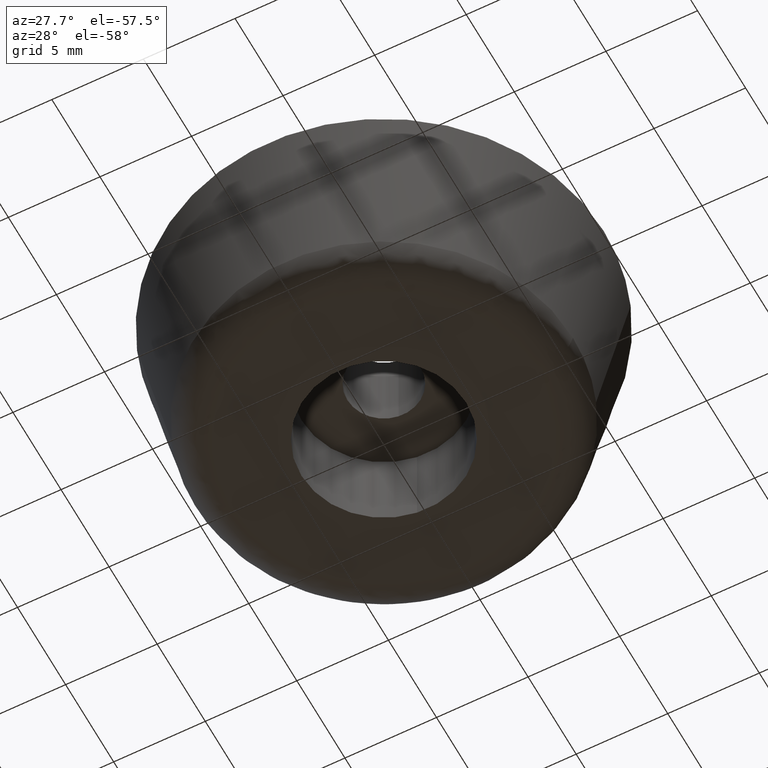
[diagram: clean part render]
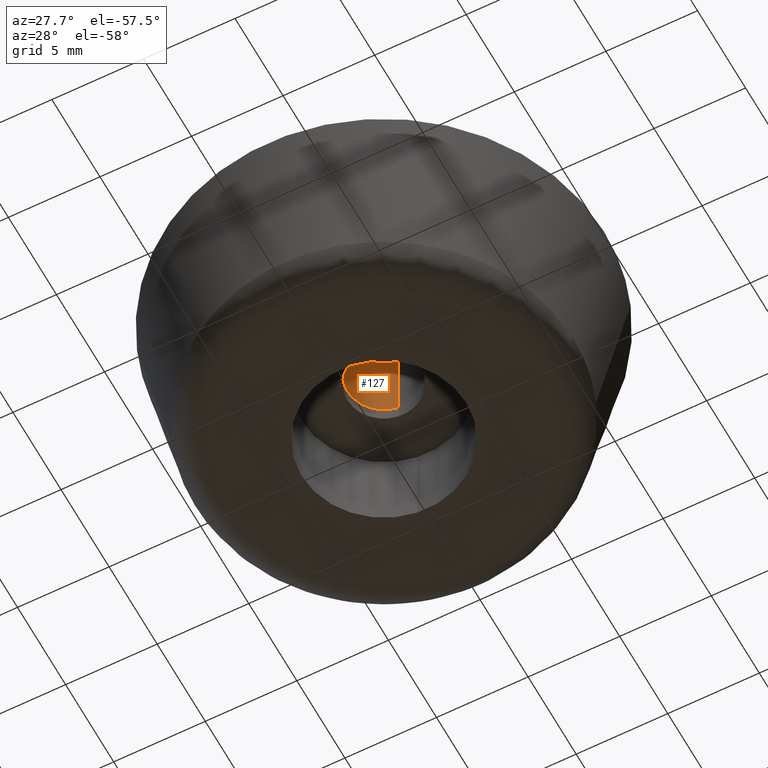
[diagram: same view with one face highlighted and labeled with its STEP entity id]
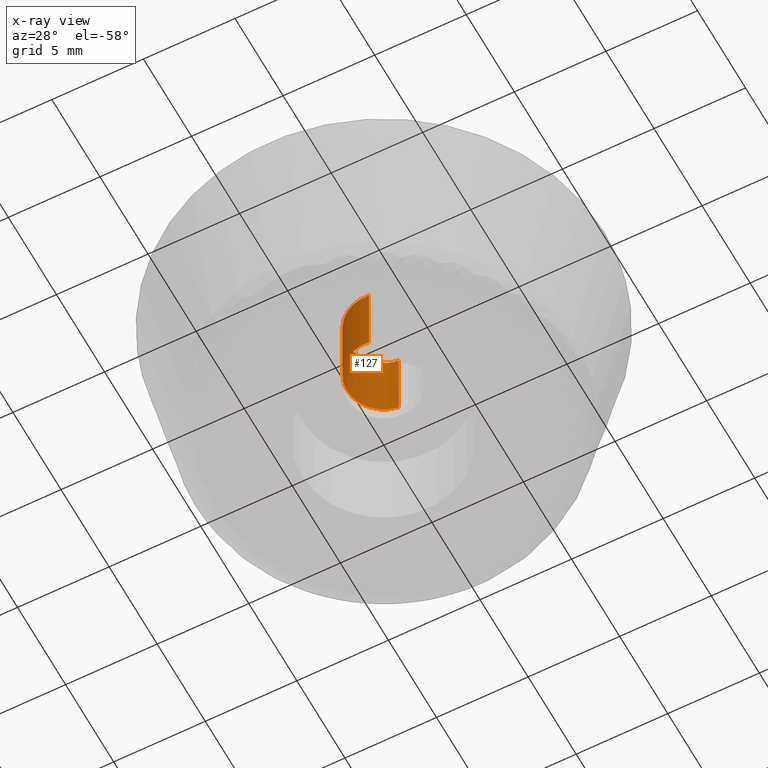
[diagram: x-ray of the same camera — body ghosted, the highlighted face saturated]
A machine part, auxiliary view. The second image highlights one B-rep face of the part: STEP entity #127.
The next image is the same camera in x-ray: the body ghosted, the highlighted face saturated — about 39% of this face is hidden behind the body in this view.
In plain terms, the highlighted cylindrical surface (partial cylindrical patch) has radius 2 mm, axis along (0, 0, 1).
Its self-contained STEP definition (entity closure, byte-faithful):
#127=ADVANCED_FACE('',(#289),#288,.F.);
#288=CYLINDRICAL_SURFACE('',#476,2.00000000000E+000);
#289=FACE_OUTER_BOUND('',#477,.T.);
#473=CARTESIAN_POINT('',(6.10924083871E-014,6.28629487979E-015,1.01050000000E+001));
#474=DIRECTION('',(2.76929706381E-014,2.84451388411E-015,1.00000000000E+000));
#475=DIRECTION('',(1.18034234657E-001,-9.93009526364E-001,-4.44089209851E-016));
#476=AXIS2_PLACEMENT_3D('',#473,#474,#475);
#477=EDGE_LOOP('',(#582,#583,#584,#585,#586,#587));
#582=ORIENTED_EDGE('',*,*,#640,.F.);
#583=ORIENTED_EDGE('',*,*,#642,.F.);
#584=ORIENTED_EDGE('',*,*,#657,.F.);
#585=ORIENTED_EDGE('',*,*,#646,.T.);
#586=ORIENTED_EDGE('',*,*,#648,.T.);
#587=ORIENTED_EDGE('',*,*,#658,.T.);
#640=EDGE_CURVE('',#883,#884,#885,.T.);
#642=EDGE_CURVE('',#891,#883,#898,.T.);
#646=EDGE_CURVE('',#925,#926,#927,.T.);
#648=EDGE_CURVE('',#926,#933,#940,.T.);
#657=EDGE_CURVE('',#925,#891,#998,.T.);
#658=EDGE_CURVE('',#933,#884,#1004,.T.);
#883=VERTEX_POINT('',#1182);
#884=VERTEX_POINT('',#1183);
#885=CIRCLE('',#1187,2.00000000000E+000);
#891=VERTEX_POINT('',#1188);
#898=CIRCLE('',#1196,2.00000000000E+000);
#925=VERTEX_POINT('',#1212);
#926=VERTEX_POINT('',#1213);
#927=CIRCLE('',#1217,2.00000000000E+000);
#933=VERTEX_POINT('',#1218);
#940=CIRCLE('',#1226,2.00000000000E+000);
#998=(BOUNDED_CURVE() B_SPLINE_CURVE(1,(#1259,#1260),.UNSPECIFIED.,.F.,.F.) B_SPLINE_CURVE_WITH_KNOTS((2,2),(8.33333313467E-002,9.16666670832E-001),.UNSPECIFIED.) CURVE() GEOMETRIC_REPRESENTATION_ITEM() RATIONAL_B_SPLINE_CURVE((1.00000000000E+000,1.00000000000E+000)) REPRESENTATION_ITEM('') );
#1004=(BOUNDED_CURVE() B_SPLINE_CURVE(1,(#1261,#1262),.UNSPECIFIED.,.F.,.F.) B_SPLINE_CURVE_WITH_KNOTS((2,2),(8.33333333333E-002,9.16666666667E-001),.UNSPECIFIED.) CURVE() GEOMETRIC_REPRESENTATION_ITEM() RATIONAL_B_SPLINE_CURVE((7.50000000000E-001,7.50000000000E-001)) REPRESENTATION_ITEM('') );
#1182=CARTESIAN_POINT('',(-2.00000000000E+000,-6.66133814775E-016,1.00000000000E+001));
#1183=CARTESIAN_POINT('',(-2.36411791321E-001,1.98597821361E+000,1.00000000000E+001));
#1184=CARTESIAN_POINT('',(-5.55111512313E-016,-3.33066907388E-016,1.00000000000E+001));
#1185=DIRECTION('',(1.01880182416E-014,-5.77861428570E-016,-1.00000000000E+000));
#1186=DIRECTION('',(-1.00000000000E+000,1.94289029309E-016,-1.01880182416E-014));
#1187=AXIS2_PLACEMENT_3D('',#1184,#1185,#1186);
#1188=CARTESIAN_POINT('',(2.36067743038E-001,-1.98601913906E+000,1.00000000000E+001));
#1193=CARTESIAN_POINT('',(-5.55111512313E-016,-3.33066907388E-016,1.00000000000E+001));
#1194=DIRECTION('',(1.01880182416E-014,-5.77861428570E-016,-1.00000000000E+000));
#1195=DIRECTION('',(-1.00000000000E+000,1.94289029309E-016,-1.01880182416E-014));
#1196=AXIS2_PLACEMENT_3D('',#1193,#1194,#1195);
#1212=CARTESIAN_POINT('',(2.36067743038E-001,-1.98601913906E+000,5.80000000000E+000));
#1213=CARTESIAN_POINT('',(-2.00000000000E+000,-1.52655665886E-015,5.80000000000E+000));
#1214=CARTESIAN_POINT('',(7.77156117238E-016,3.33066907388E-016,5.80000000000E+000));
#1215=DIRECTION('',(1.50938206526E-015,-2.05666435028E-015,-1.00000000000E+000));
#1216=DIRECTION('',(-1.00000000000E+000,-5.82867087928E-016,-1.50938206526E-015));
#1217=AXIS2_PLACEMENT_3D('',#1214,#1215,#1216);
#1218=CARTESIAN_POINT('',(-2.36411791321E-001,1.98597821361E+000,5.80000000000E+000));
#1223=CARTESIAN_POINT('',(7.77156117238E-016,3.33066907388E-016,5.80000000000E+000));
#1224=DIRECTION('',(1.50938206526E-015,-2.05666435028E-015,-1.00000000000E+000));
#1225=DIRECTION('',(-1.00000000000E+000,-5.82867087928E-016,-1.50938206526E-015));
#1226=AXIS2_PLACEMENT_3D('',#1223,#1224,#1225);
#1259=CARTESIAN_POINT('',(2.36068469314E-001,-1.98601905273E+000,5.79999998999E+000));
#1260=CARTESIAN_POINT('',(2.36068469314E-001,-1.98601905273E+000,1.00000000210E+001));
#1261=CARTESIAN_POINT('',(-2.36068469314E-001,1.98601905273E+000,5.80000000000E+000));
#1262=CARTESIAN_POINT('',(-2.36068469314E-001,1.98601905273E+000,1.00000000000E+001));